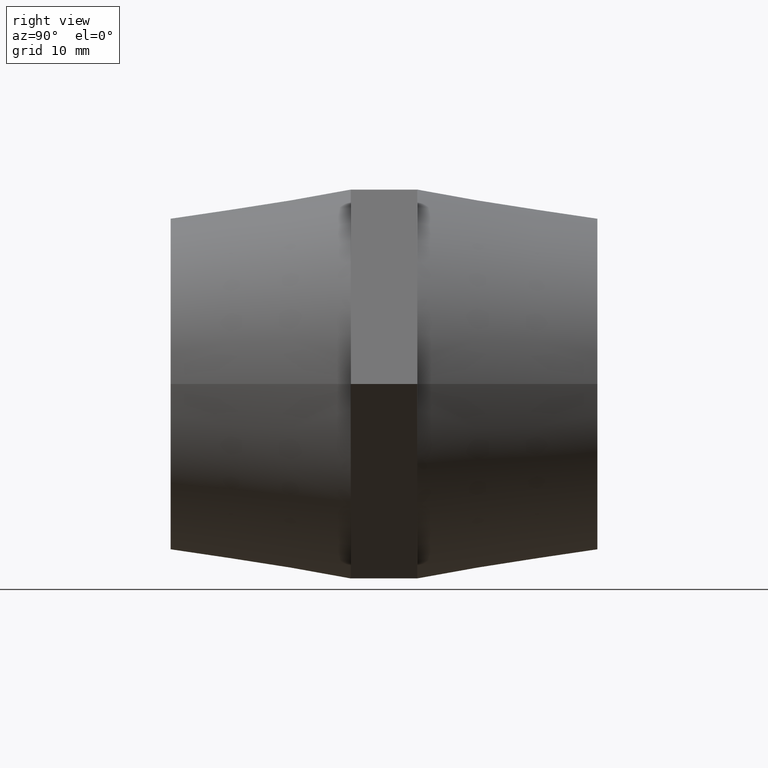
[diagram: clean part render]
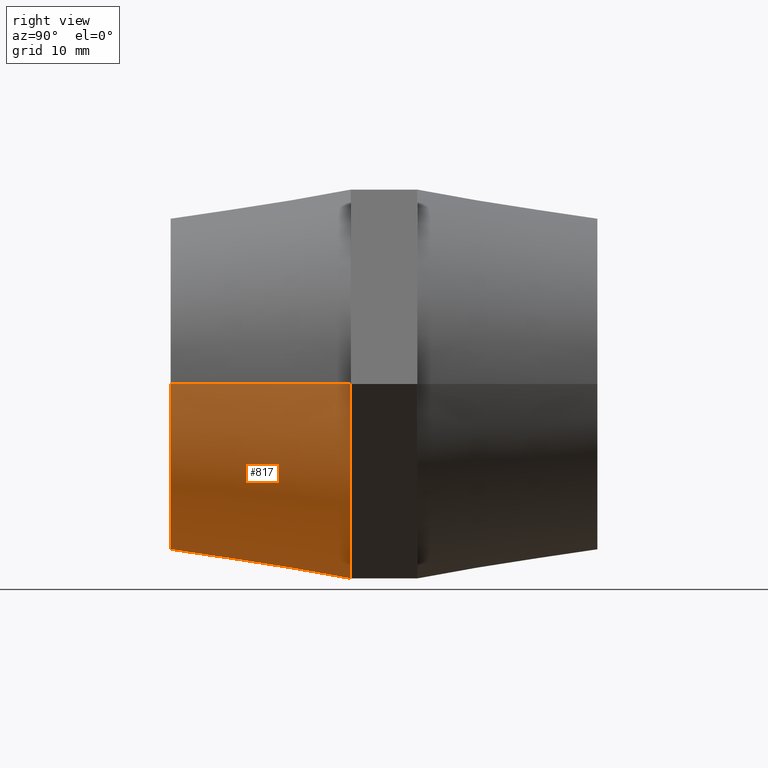
[diagram: same view with one face highlighted and labeled with its STEP entity id]
A machine part, right view. The second image highlights one B-rep face of the part: STEP entity #817.
In plain terms, the highlighted conical surface has half-angle 8.973 deg.
Its self-contained STEP definition (entity closure, byte-faithful):
#43 = VERTEX_POINT ( 'NONE', #1233 ) ;
#87 = ORIENTED_EDGE ( 'NONE', *, *, #3529, .F. ) ;
#99 = CARTESIAN_POINT ( 'NONE',  ( -20.49999999999999600, -3.500000000000000000, 0.0000000000000000000 ) ) ;
#149 = CARTESIAN_POINT ( 'NONE',  ( 17.75352077758099900, -3.500000000000000000, -10.25000000000000000 ) ) ;
#282 = EDGE_CURVE ( 'NONE', #1362, #3211, #1213, .T. ) ;
#297 = DIRECTION ( 'NONE',  ( -1.000000000000000000, -1.269309860470834500E-016, 0.0000000000000000000 ) ) ;
#336 = CARTESIAN_POINT ( 'NONE',  ( 3.184081677783119800E-015, -3.500000000000000000, 3.963988323555905400E-016 ) ) ;
#343 = VERTEX_POINT ( 'NONE', #2905 ) ;
#567 = CARTESIAN_POINT ( 'NONE',  ( 3.184081677783119800E-015, -3.500000000000000000, 3.963988323555905400E-016 ) ) ;
#610 = DIRECTION ( 'NONE',  ( 0.0000000000000000000, 0.0000000000000000000, 1.000000000000000000 ) ) ;
#651 = CIRCLE ( 'NONE', #2672, 20.50000000000000000 ) ;
#771 = ORIENTED_EDGE ( 'NONE', *, *, #3715, .T. ) ;
#775 = VERTEX_POINT ( 'NONE', #1680 ) ;
#815 = ORIENTED_EDGE ( 'NONE', *, *, #1719, .F. ) ;
#817 = ADVANCED_FACE ( 'NONE', ( #1357 ), #3149, .T. ) ;
#867 = CARTESIAN_POINT ( 'NONE',  ( 3.184081677783119800E-015, -3.500000000000000000, 3.963988323555905400E-016 ) ) ;
#879 = DIRECTION ( 'NONE',  ( 0.0000000000000000000, 0.0000000000000000000, 1.000000000000000000 ) ) ;
#942 = CARTESIAN_POINT ( 'NONE',  ( 3.184081677783119800E-015, -3.500000000000000000, 0.0000000000000000000 ) ) ;
#1176 = ORIENTED_EDGE ( 'NONE', *, *, #1695, .F. ) ;
#1197 = ORIENTED_EDGE ( 'NONE', *, *, #3022, .T. ) ;
#1206 = CARTESIAN_POINT ( 'NONE',  ( 5.510910596163089600E-015, -22.50000000000000000, 0.0000000000000000000 ) ) ;
#1212 = DIRECTION ( 'NONE',  ( 0.0000000000000000000, 1.000000000000000000, 0.0000000000000000000 ) ) ;
#1213 = CIRCLE ( 'NONE', #2499, 20.50000000000000000 ) ;
#1233 = CARTESIAN_POINT ( 'NONE',  ( 3.184081677783119800E-015, -3.500000000000000000, -20.50000000000000000 ) ) ;
#1357 = FACE_OUTER_BOUND ( 'NONE', #3143, .T. ) ;
#1362 = VERTEX_POINT ( 'NONE', #3729 ) ;
#1524 = DIRECTION ( 'NONE',  ( 0.0000000000000000000, 0.0000000000000000000, 1.000000000000000000 ) ) ;
#1528 = VERTEX_POINT ( 'NONE', #99 ) ;
#1583 = AXIS2_PLACEMENT_3D ( 'NONE', #336, #1212, #610 ) ;
#1680 = CARTESIAN_POINT ( 'NONE',  ( -17.49999999999999600, -22.50000000000000400, 0.0000000000000000000 ) ) ;
#1695 = EDGE_CURVE ( 'NONE', #3211, #43, #651, .T. ) ;
#1719 = EDGE_CURVE ( 'NONE', #3116, #1362, #2693, .T. ) ;
#1774 = AXIS2_PLACEMENT_3D ( 'NONE', #942, #2060, #297 ) ;
#1780 = AXIS2_PLACEMENT_3D ( 'NONE', #1206, #2437, #3302 ) ;
#1852 = VECTOR ( 'NONE', #2908, 1000.000000000000100 ) ;
#1861 = DIRECTION ( 'NONE',  ( -0.1559625734730106000, 0.9877629653290690400, 0.0000000000000000000 ) ) ;
#1980 = VECTOR ( 'NONE', #1861, 1000.000000000000200 ) ;
#1990 = CARTESIAN_POINT ( 'NONE',  ( 17.50000000000000700, -22.49999999999999600, 2.326828918379971400E-015 ) ) ;
#2016 = CARTESIAN_POINT ( 'NONE',  ( 20.50000000000000400, -3.499999999999997300, 2.510525938252074500E-015 ) ) ;
#2060 = DIRECTION ( 'NONE',  ( -1.224646799147353900E-016, 1.000000000000000000, 0.0000000000000000000 ) ) ;
#2061 = DIRECTION ( 'NONE',  ( 0.0000000000000000000, 1.000000000000000000, 0.0000000000000000000 ) ) ;
#2437 = DIRECTION ( 'NONE',  ( -1.224646799147353900E-016, 1.000000000000000000, 0.0000000000000000000 ) ) ;
#2488 = EDGE_CURVE ( 'NONE', #343, #1528, #3317, .T. ) ;
#2499 = AXIS2_PLACEMENT_3D ( 'NONE', #567, #3217, #2655 ) ;
#2655 = DIRECTION ( 'NONE',  ( 0.0000000000000000000, 0.0000000000000000000, 1.000000000000000000 ) ) ;
#2672 = AXIS2_PLACEMENT_3D ( 'NONE', #867, #2061, #879 ) ;
#2692 = DIRECTION ( 'NONE',  ( 0.0000000000000000000, 1.000000000000000000, 0.0000000000000000000 ) ) ;
#2693 = LINE ( 'NONE', #2016, #1852 ) ;
#2746 = CARTESIAN_POINT ( 'NONE',  ( -20.49999999999999600, -3.500000000000002700, 0.0000000000000000000 ) ) ;
#2905 = CARTESIAN_POINT ( 'NONE',  ( -17.75352077758099900, -3.500000000000000000, -10.25000000000000000 ) ) ;
#2908 = DIRECTION ( 'NONE',  ( 0.1559625734730103700, 0.9877629653290691500, 1.909990663905061800E-017 ) ) ;
#2938 = ORIENTED_EDGE ( 'NONE', *, *, #282, .F. ) ;
#3015 = AXIS2_PLACEMENT_3D ( 'NONE', #3578, #2692, #1524 ) ;
#3022 = EDGE_CURVE ( 'NONE', #3116, #775, #3263, .T. ) ;
#3033 = CIRCLE ( 'NONE', #3015, 20.50000000000000000 ) ;
#3081 = LINE ( 'NONE', #2746, #1980 ) ;
#3116 = VERTEX_POINT ( 'NONE', #1990 ) ;
#3143 = EDGE_LOOP ( 'NONE', ( #815, #1197, #771, #3410, #87, #1176, #2938 ) ) ;
#3149 = CONICAL_SURFACE ( 'NONE', #1774, 20.50000000000000000, 0.1566018769820149100 ) ;
#3211 = VERTEX_POINT ( 'NONE', #149 ) ;
#3217 = DIRECTION ( 'NONE',  ( 0.0000000000000000000, 1.000000000000000000, 0.0000000000000000000 ) ) ;
#3263 = CIRCLE ( 'NONE', #1780, 17.50000000000000000 ) ;
#3302 = DIRECTION ( 'NONE',  ( -1.000000000000000000, -1.982541115402065400E-016, 0.0000000000000000000 ) ) ;
#3317 = CIRCLE ( 'NONE', #1583, 20.50000000000000000 ) ;
#3410 = ORIENTED_EDGE ( 'NONE', *, *, #2488, .F. ) ;
#3529 = EDGE_CURVE ( 'NONE', #43, #343, #3033, .T. ) ;
#3578 = CARTESIAN_POINT ( 'NONE',  ( 3.184081677783119800E-015, -3.500000000000000000, 3.963988323555905400E-016 ) ) ;
#3715 = EDGE_CURVE ( 'NONE', #775, #1528, #3081, .T. ) ;
#3729 = CARTESIAN_POINT ( 'NONE',  ( 20.50000000000000400, -3.500000000000000000, 2.510525938252074500E-015 ) ) ;